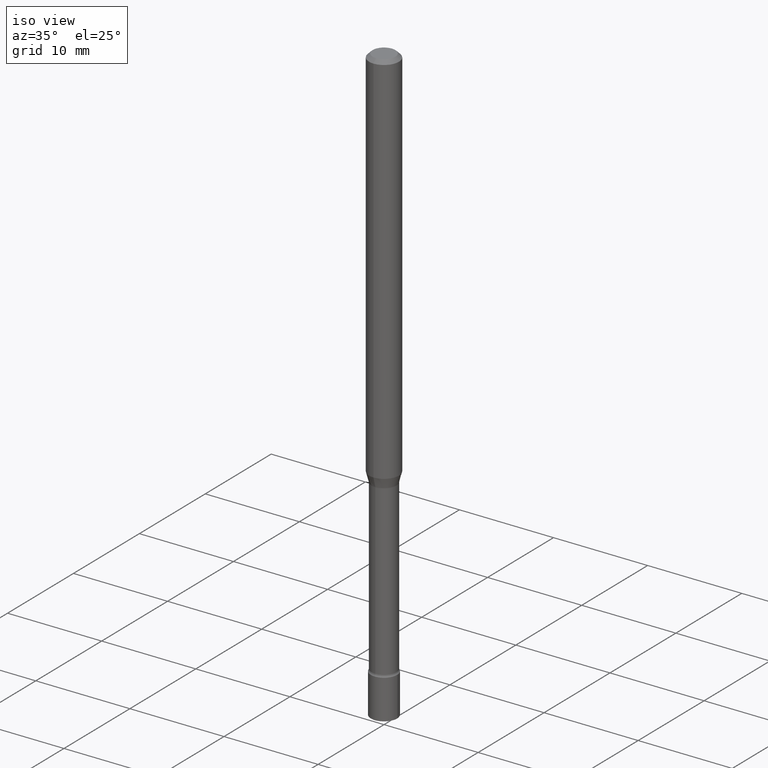
[diagram: clean part render]
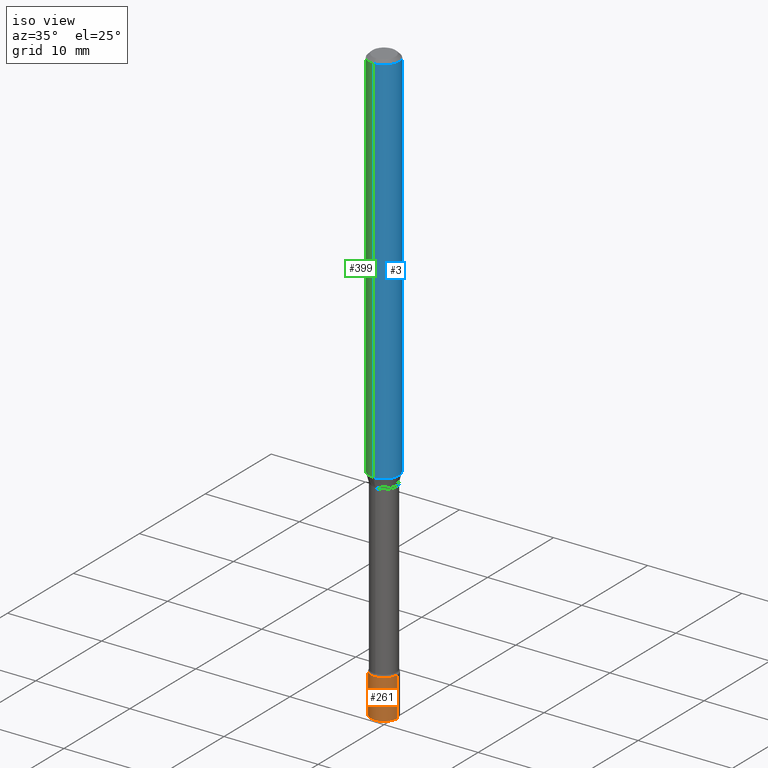
[diagram: same view with three faces highlighted in distinct colors, each labeled with its STEP entity id]
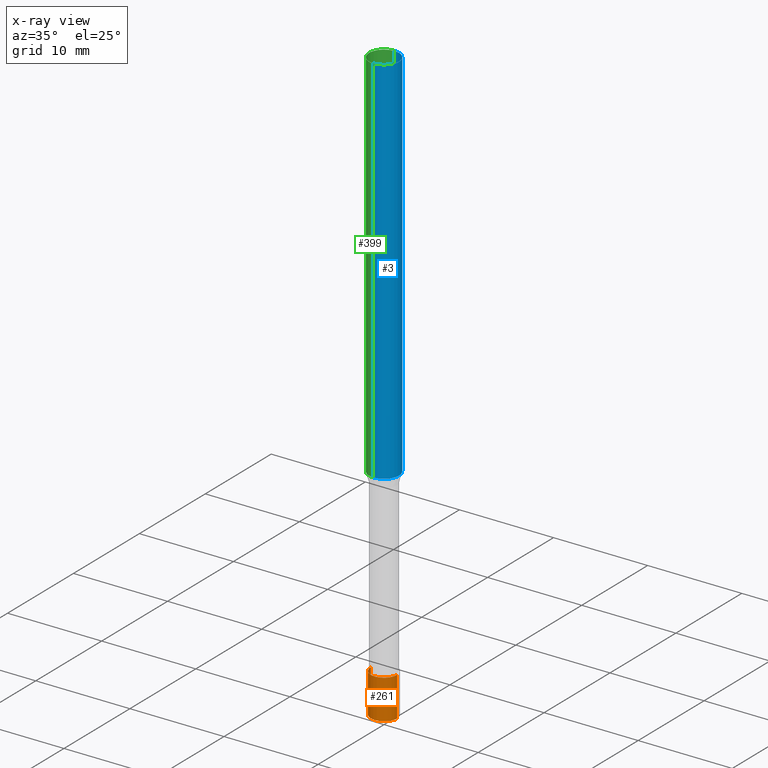
[diagram: x-ray of the same camera — body ghosted, the three highlighted faces saturated]
A machine part, iso view with three faces highlighted in distinct colors.
The next image is the same camera in x-ray (body ghosted, the three faces saturated) — at least one of them is partly hidden behind the body in this view.
Their STEP definitions:

[orange] entity #261 — the highlighted cylindrical surface (edge-blend (fillet) strip) has radius 1.397 mm, axis along (-0, 0, 1).
#23 = CIRCLE ( 'NONE', #110, 0.05500000000000000028 ) ;
#29 = CARTESIAN_POINT ( 'NONE',  ( -0.05500000000000000028, -8.049857631985250360E-15, -2.334999999999999964 ) ) ;
#50 = AXIS2_PLACEMENT_3D ( 'NONE', #316, #430, #274 ) ;
#53 = CARTESIAN_POINT ( 'NONE',  ( 0.05500000000000000028, -3.840629472727446888E-16, 2.681897226687764826E-30 ) ) ;
#72 = VERTEX_POINT ( 'NONE', #415 ) ;
#94 = VECTOR ( 'NONE', #388, 39.37007874015748143 ) ;
#110 = AXIS2_PLACEMENT_3D ( 'NONE', #463, #426, #432 ) ;
#114 = ORIENTED_EDGE ( 'NONE', *, *, #125, .F. ) ;
#125 = EDGE_CURVE ( 'NONE', #361, #72, #198, .T. ) ;
#140 = CARTESIAN_POINT ( 'NONE',  ( 5.710169662442294357E-29, -8.152608926198745099E-15, -2.334999999999999964 ) ) ;
#172 = DIRECTION ( 'NONE',  ( -2.445468806185136877E-29, 3.491481338843145188E-15, 1.000000000000000000 ) ) ;
#184 = CYLINDRICAL_SURFACE ( 'NONE', #50, 0.05500000000000000028 ) ;
#191 = FACE_OUTER_BOUND ( 'NONE', #192, .T. ) ;
#192 = EDGE_LOOP ( 'NONE', ( #236, #437, #330, #114 ) ) ;
#198 = CIRCLE ( 'NONE', #349, 0.05500000000000000028 ) ;
#199 = EDGE_CURVE ( 'NONE', #251, #72, #494, .T. ) ;
#226 = CARTESIAN_POINT ( 'NONE',  ( -0.05500000000000000028, 3.907985046680551042E-16, -2.705414299640198362E-30 ) ) ;
#236 = ORIENTED_EDGE ( 'NONE', *, *, #377, .F. ) ;
#251 = VERTEX_POINT ( 'NONE', #276 ) ;
#252 = EDGE_CURVE ( 'NONE', #429, #251, #23, .T. ) ;
#261 = ADVANCED_FACE ( 'NONE', ( #191 ), #184, .T. ) ;
#274 = DIRECTION ( 'NONE',  ( 1.000000000000000000, -6.982962677686266711E-15, 4.876176775795935793E-29 ) ) ;
#276 = CARTESIAN_POINT ( 'NONE',  ( 0.05500000000000000028, -9.112766294380608350E-15, -2.500000000000000000 ) ) ;
#300 = DIRECTION ( 'NONE',  ( -2.445468806185136597E-29, 3.491481338843145583E-15, 1.000000000000000000 ) ) ;
#306 = VECTOR ( 'NONE', #172, 39.37007874015748143 ) ;
#316 = CARTESIAN_POINT ( 'NONE',  ( 0.000000000000000000, 0.000000000000000000, 0.000000000000000000 ) ) ;
#330 = ORIENTED_EDGE ( 'NONE', *, *, #199, .T. ) ;
#340 = DIRECTION ( 'NONE',  ( 1.000000000000000000, -6.982962677686262766E-15, 0.000000000000000000 ) ) ;
#349 = AXIS2_PLACEMENT_3D ( 'NONE', #140, #300, #340 ) ;
#361 = VERTEX_POINT ( 'NONE', #29 ) ;
#377 = EDGE_CURVE ( 'NONE', #429, #361, #469, .T. ) ;
#388 = DIRECTION ( 'NONE',  ( -2.445468806185136877E-29, 3.491481338843145188E-15, 1.000000000000000000 ) ) ;
#403 = CARTESIAN_POINT ( 'NONE',  ( -0.05500000000000000028, -8.049857631985250360E-15, -2.500000000000000000 ) ) ;
#415 = CARTESIAN_POINT ( 'NONE',  ( 0.05500000000000000028, -8.536671873471490084E-15, -2.334999999999999964 ) ) ;
#426 = DIRECTION ( 'NONE',  ( -2.445468806185136597E-29, 3.491481338843145583E-15, 1.000000000000000000 ) ) ;
#429 = VERTEX_POINT ( 'NONE', #403 ) ;
#430 = DIRECTION ( 'NONE',  ( -2.445468806185136597E-29, 3.491481338843145583E-15, 1.000000000000000000 ) ) ;
#432 = DIRECTION ( 'NONE',  ( 1.000000000000000000, -6.982962677686262766E-15, 0.000000000000000000 ) ) ;
#437 = ORIENTED_EDGE ( 'NONE', *, *, #252, .T. ) ;
#463 = CARTESIAN_POINT ( 'NONE',  ( 6.113672015462842613E-29, -8.728703347107864943E-15, -2.500000000000000000 ) ) ;
#469 = LINE ( 'NONE', #226, #94 ) ;
#494 = LINE ( 'NONE', #53, #306 ) ;

[blue] entity #3 — the highlighted cylindrical surface (edge-blend (fillet) strip) has radius 1.5875 mm, axis along (-0, 0, 1).
#3 = ADVANCED_FACE ( 'NONE', ( #240 ), #472, .T. ) ;
#6 = EDGE_CURVE ( 'NONE', #512, #322, #518, .T. ) ;
#13 = CARTESIAN_POINT ( 'NONE',  ( 3.862943689972467044E-29, -5.515684043670850416E-15, -1.579693851278256345 ) ) ;
#21 = CARTESIAN_POINT ( 'NONE',  ( -4.364351673553528673E-16, -0.06250000000000548173, -1.579693851278256123 ) ) ;
#36 = AXIS2_PLACEMENT_3D ( 'NONE', #124, #210, #285 ) ;
#82 = EDGE_CURVE ( 'NONE', #319, #451, #138, .T. ) ;
#89 = ORIENTED_EDGE ( 'NONE', *, *, #176, .F. ) ;
#117 = DIRECTION ( 'NONE',  ( -6.982962677686265922E-15, -1.000000000000000000, 3.491615821133740331E-15 ) ) ;
#124 = CARTESIAN_POINT ( 'NONE',  ( 3.668062346555307228E-31, -5.237423731700621245E-17, -0.01500000000000003067 ) ) ;
#132 = DIRECTION ( 'NONE',  ( -2.445374897703533178E-29, 3.491615821133740331E-15, 1.000000000000000000 ) ) ;
#138 = CIRCLE ( 'NONE', #489, 0.06250000000000000000 ) ;
#167 = EDGE_CURVE ( 'NONE', #451, #322, #454, .T. ) ;
#173 = DIRECTION ( 'NONE',  ( -2.445374897703533178E-29, 3.491615821133740725E-15, 1.000000000000000000 ) ) ;
#176 = EDGE_CURVE ( 'NONE', #319, #512, #345, .T. ) ;
#210 = DIRECTION ( 'NONE',  ( -2.445374897703533178E-29, 3.491615821133740725E-15, 1.000000000000000000 ) ) ;
#218 = DIRECTION ( 'NONE',  ( -2.445374897703533178E-29, 3.491615821133740331E-15, 1.000000000000000000 ) ) ;
#229 = AXIS2_PLACEMENT_3D ( 'NONE', #435, #476, #117 ) ;
#232 = CARTESIAN_POINT ( 'NONE',  ( 4.440892098501014676E-16, 0.06249999999999995143, -0.01500000000000024751 ) ) ;
#240 = FACE_OUTER_BOUND ( 'NONE', #470, .T. ) ;
#258 = CARTESIAN_POINT ( 'NONE',  ( 4.440892098500625669E-16, 0.06250000000000000000, -2.182259888208587707E-16 ) ) ;
#285 = DIRECTION ( 'NONE',  ( -6.982962677686265922E-15, -1.000000000000000000, 3.483106191921935554E-15 ) ) ;
#319 = VERTEX_POINT ( 'NONE', #21 ) ;
#322 = VERTEX_POINT ( 'NONE', #232 ) ;
#329 = CARTESIAN_POINT ( 'NONE',  ( 4.440892098501012704E-16, 0.06249999999999450440, -1.579693851278256789 ) ) ;
#345 = LINE ( 'NONE', #380, #498 ) ;
#376 = VECTOR ( 'NONE', #218, 39.37007874015748143 ) ;
#380 = CARTESIAN_POINT ( 'NONE',  ( -4.364351673553916201E-16, -0.06250000000000000000, 2.182259888208587707E-16 ) ) ;
#400 = ORIENTED_EDGE ( 'NONE', *, *, #82, .T. ) ;
#435 = CARTESIAN_POINT ( 'NONE',  ( 0.000000000000000000, 0.000000000000000000, 0.000000000000000000 ) ) ;
#451 = VERTEX_POINT ( 'NONE', #329 ) ;
#454 = LINE ( 'NONE', #258, #376 ) ;
#470 = EDGE_LOOP ( 'NONE', ( #400, #509, #503, #89 ) ) ;
#472 = CYLINDRICAL_SURFACE ( 'NONE', #229, 0.06250000000000000000 ) ;
#476 = DIRECTION ( 'NONE',  ( -2.445374897703533178E-29, 3.491615821133740725E-15, 1.000000000000000000 ) ) ;
#486 = DIRECTION ( 'NONE',  ( -6.982962677686265922E-15, -1.000000000000000000, 4.370956789862821150E-15 ) ) ;
#489 = AXIS2_PLACEMENT_3D ( 'NONE', #13, #173, #486 ) ;
#498 = VECTOR ( 'NONE', #132, 39.37007874015748143 ) ;
#503 = ORIENTED_EDGE ( 'NONE', *, *, #6, .F. ) ;
#509 = ORIENTED_EDGE ( 'NONE', *, *, #167, .T. ) ;
#511 = CARTESIAN_POINT ( 'NONE',  ( -4.364351673553912750E-16, -0.06250000000000005551, -0.01499999999999981209 ) ) ;
#512 = VERTEX_POINT ( 'NONE', #511 ) ;
#518 = CIRCLE ( 'NONE', #36, 0.06250000000000000000 ) ;

[green] entity #399 — the highlighted cylindrical surface (edge-blend (fillet) strip) has radius 1.5875 mm, axis along (-0, 0, 1).
#4 = CARTESIAN_POINT ( 'NONE',  ( 3.862943689972467044E-29, -5.515684043670850416E-15, -1.579693851278256345 ) ) ;
#21 = CARTESIAN_POINT ( 'NONE',  ( -4.364351673553528673E-16, -0.06250000000000548173, -1.579693851278256123 ) ) ;
#31 = DIRECTION ( 'NONE',  ( -6.982962677686265922E-15, -1.000000000000000000, 3.491615821133740331E-15 ) ) ;
#69 = AXIS2_PLACEMENT_3D ( 'NONE', #235, #460, #115 ) ;
#79 = ORIENTED_EDGE ( 'NONE', *, *, #167, .F. ) ;
#115 = DIRECTION ( 'NONE',  ( -6.982962677686265922E-15, -1.000000000000000000, 3.483106191921935554E-15 ) ) ;
#121 = ORIENTED_EDGE ( 'NONE', *, *, #237, .F. ) ;
#132 = DIRECTION ( 'NONE',  ( -2.445374897703533178E-29, 3.491615821133740331E-15, 1.000000000000000000 ) ) ;
#153 = CYLINDRICAL_SURFACE ( 'NONE', #213, 0.06250000000000000000 ) ;
#157 = EDGE_LOOP ( 'NONE', ( #79, #480, #427, #121 ) ) ;
#167 = EDGE_CURVE ( 'NONE', #451, #322, #454, .T. ) ;
#176 = EDGE_CURVE ( 'NONE', #319, #512, #345, .T. ) ;
#185 = AXIS2_PLACEMENT_3D ( 'NONE', #4, #471, #281 ) ;
#213 = AXIS2_PLACEMENT_3D ( 'NONE', #312, #395, #31 ) ;
#218 = DIRECTION ( 'NONE',  ( -2.445374897703533178E-29, 3.491615821133740331E-15, 1.000000000000000000 ) ) ;
#232 = CARTESIAN_POINT ( 'NONE',  ( 4.440892098501014676E-16, 0.06249999999999995143, -0.01500000000000024751 ) ) ;
#235 = CARTESIAN_POINT ( 'NONE',  ( 3.668062346555307228E-31, -5.237423731700621245E-17, -0.01500000000000003067 ) ) ;
#237 = EDGE_CURVE ( 'NONE', #322, #512, #467, .T. ) ;
#258 = CARTESIAN_POINT ( 'NONE',  ( 4.440892098500625669E-16, 0.06250000000000000000, -2.182259888208587707E-16 ) ) ;
#281 = DIRECTION ( 'NONE',  ( -6.982962677686265922E-15, -1.000000000000000000, 4.370956789862821150E-15 ) ) ;
#312 = CARTESIAN_POINT ( 'NONE',  ( 0.000000000000000000, 0.000000000000000000, 0.000000000000000000 ) ) ;
#319 = VERTEX_POINT ( 'NONE', #21 ) ;
#322 = VERTEX_POINT ( 'NONE', #232 ) ;
#329 = CARTESIAN_POINT ( 'NONE',  ( 4.440892098501012704E-16, 0.06249999999999450440, -1.579693851278256789 ) ) ;
#345 = LINE ( 'NONE', #380, #498 ) ;
#368 = CIRCLE ( 'NONE', #185, 0.06250000000000000000 ) ;
#376 = VECTOR ( 'NONE', #218, 39.37007874015748143 ) ;
#380 = CARTESIAN_POINT ( 'NONE',  ( -4.364351673553916201E-16, -0.06250000000000000000, 2.182259888208587707E-16 ) ) ;
#392 = FACE_OUTER_BOUND ( 'NONE', #157, .T. ) ;
#395 = DIRECTION ( 'NONE',  ( -2.445374897703533178E-29, 3.491615821133740725E-15, 1.000000000000000000 ) ) ;
#399 = ADVANCED_FACE ( 'NONE', ( #392 ), #153, .T. ) ;
#427 = ORIENTED_EDGE ( 'NONE', *, *, #176, .T. ) ;
#451 = VERTEX_POINT ( 'NONE', #329 ) ;
#454 = LINE ( 'NONE', #258, #376 ) ;
#460 = DIRECTION ( 'NONE',  ( -2.445374897703533178E-29, 3.491615821133740725E-15, 1.000000000000000000 ) ) ;
#467 = CIRCLE ( 'NONE', #69, 0.06250000000000000000 ) ;
#471 = DIRECTION ( 'NONE',  ( -2.445374897703533178E-29, 3.491615821133740725E-15, 1.000000000000000000 ) ) ;
#480 = ORIENTED_EDGE ( 'NONE', *, *, #504, .T. ) ;
#498 = VECTOR ( 'NONE', #132, 39.37007874015748143 ) ;
#504 = EDGE_CURVE ( 'NONE', #451, #319, #368, .T. ) ;
#511 = CARTESIAN_POINT ( 'NONE',  ( -4.364351673553912750E-16, -0.06250000000000005551, -0.01499999999999981209 ) ) ;
#512 = VERTEX_POINT ( 'NONE', #511 ) ;